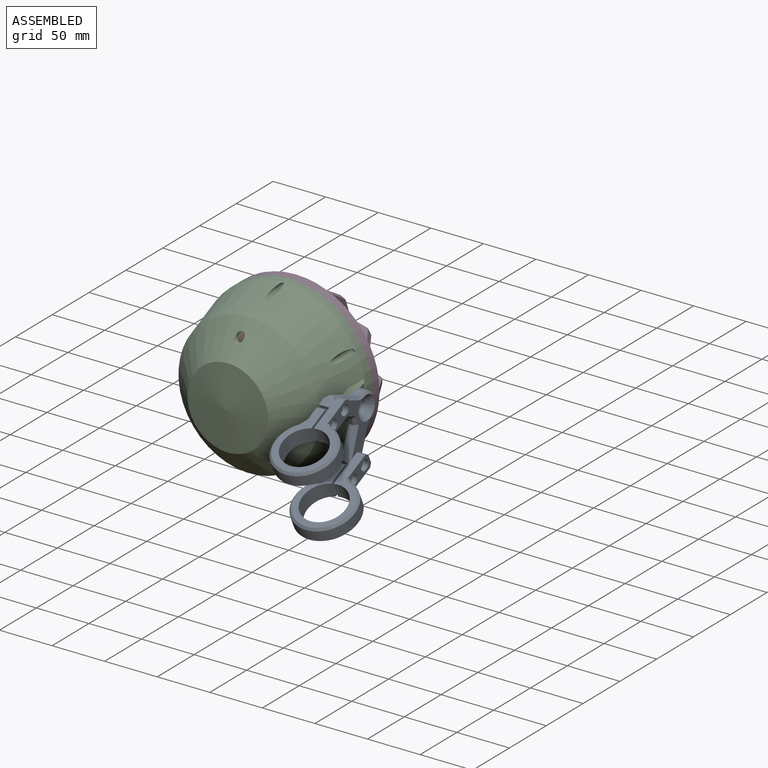
[diagram: assembled view]
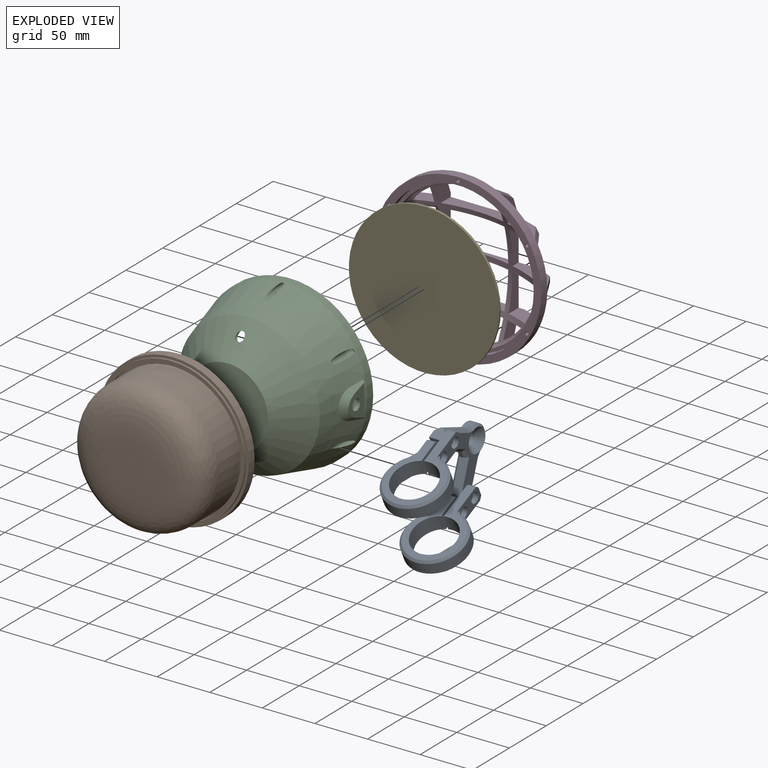
[diagram: exploded view]
GUIDED TOUR — MATED ASSEMBLY WITH SUBASSEMBLIES (Onshape document 69286e60cfd82a157b84bacd, AutoMate assembly 69286e60cfd82a157b84bacd_a28d828d57415dc4b9937659_d57bcda9c0aa24d622f274be_default)

This assembly has 7 component occurrences arranged in 5 top-level units: 4 individual components plus 1 subassembly (S0). The tour has two levels: first the top level, where each subassembly is treated as one rigid unit; then each subassembly is toured internally in its own section (nesting deeper than one subassembly level is flattened into its subassembly's section).

Components are labeled P0..P6 across the whole record; subassembly units are labeled S0..S0. A mate is a constraint between two units; its type names the relative motion it leaves free:
  FASTENED — locks the two components together rigidly (no relative motion),
  PARALLEL — keeps the two listed directions parallel,
  PLANAR — leaves sliding in the plane through the listed point (normal = the listed direction) and rotation about that normal free,
  REVOLUTE — leaves rotation about the listed axis free (a hinge).
Axis/direction vectors are unit vectors and 'through' points are millimeter coordinates, both in the assembly's world frame.

TOP-LEVEL MATES (between units; each subassembly's internal mates are listed in its own section)
  1. FASTENED "Fastened 3": P4 <-> P2, direction (0.000, 1.000, 0.000) through (-33.72, 16.69, 123.53) mm
  2. REVOLUTE "Revolute 1": S0 <-> P4, axis (-1.000, 0.000, 0.000) through (44.98, -0.95, 123.53) mm
  3. FASTENED "Fastened 2": P2 <-> P6, direction (0.000, 1.000, 0.000) through (-33.72, 24.69, 123.53) mm
  4. FASTENED "Fastened 1": P5 <-> P4, direction (0.000, -1.000, 0.000) through (-33.72, 21.15, 123.53) mm

TOP-LEVEL ASSEMBLY ORDER
  1. P4 — the base component [order heuristic]
  2. P2 — core [order heuristic]
  3. P5 — core [order heuristic]
  4. P6 — core [order heuristic]
  5. S0 [order verified]
Order-tag legend:
  [order verified] — this step's position reverses a verified removal order: the component was checked to insert without passing through the ones already placed.
  [order heuristic] — the first 4 components form the assembly's core: parts whose collision-free extraction could not be verified, listed in mate-graph order.

Of the 7 component occurrences, 2 carry the full construction recipe — the FeatureScript program that regenerates the part's solid from scratch; the rest are supplied as boundary geometry only. Each toured unit is shown spotlighted twice — assembled, then exploded with a leader line back to its socket (green = recipe-attached component, orange = geometry-only, blue = subassembly unit; the rest desaturated gray).
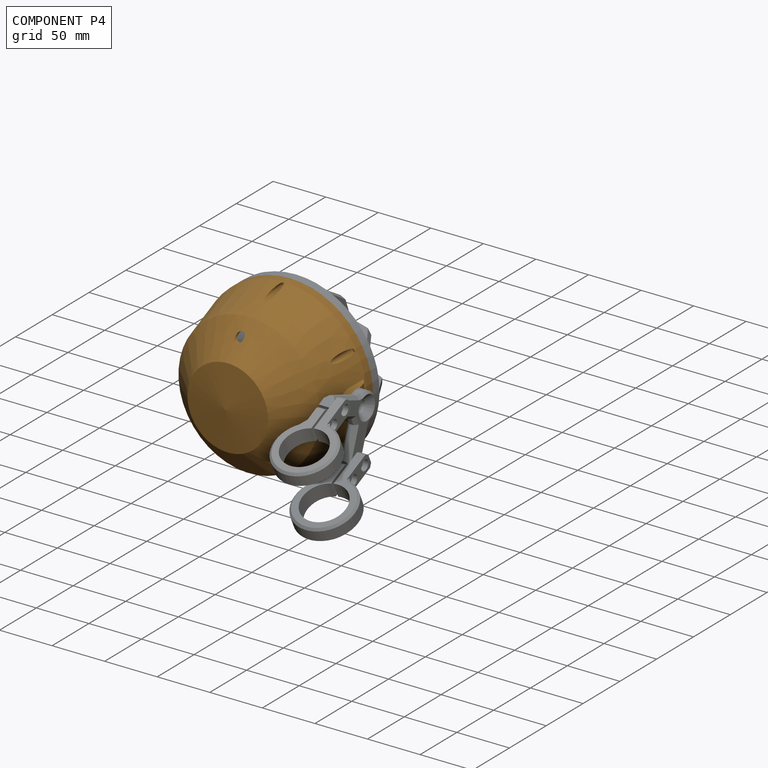
[diagram: component P4 — assembled]
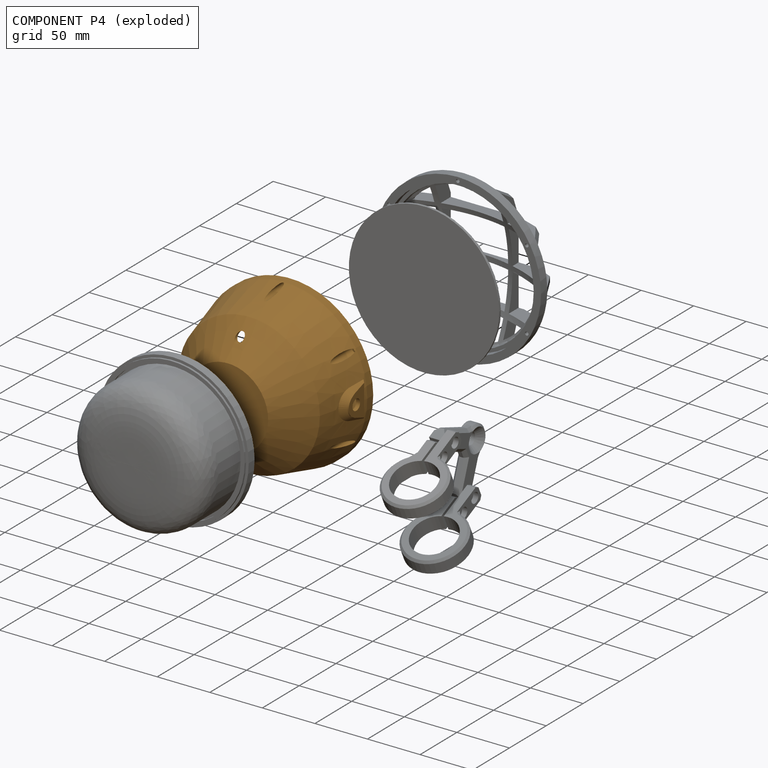
[diagram: component P4 — exploded]
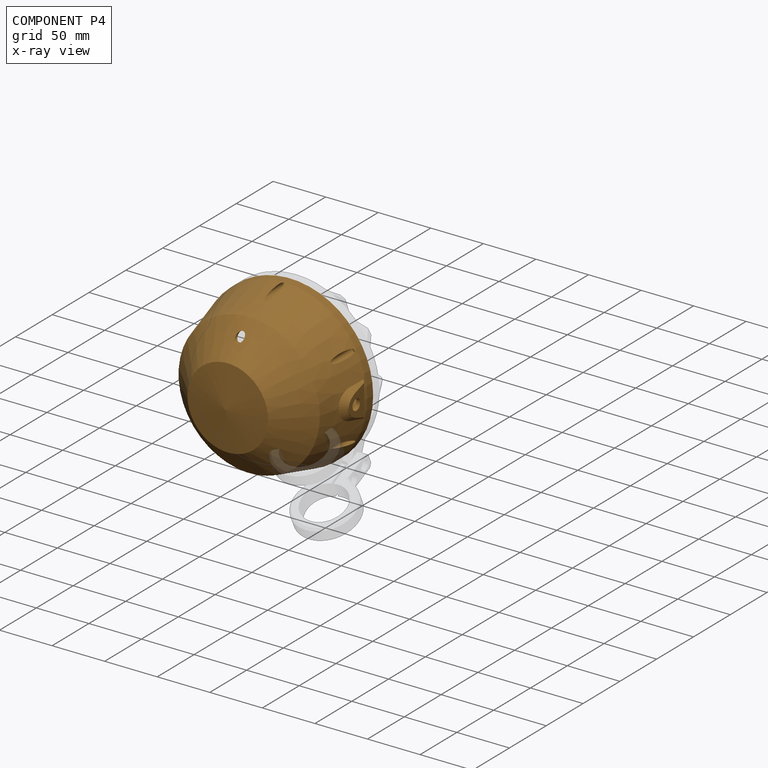
[diagram: component P4 — x-ray view]
COMPONENT P4 — geometry summary (no construction recipe available for this part):
  bounding box: 165.6 x 158.6 x 88.3 mm
  B-rep topology: 1 solid, 70 faces, 370 edges
  volume: 193899 mm^3 (8% of its bounding box)
  symmetry: mirror-symmetric across its x mid-plane
Held by: FASTENED mate "Fastened 3" to P2; REVOLUTE mate "Revolute 1" to P0; FASTENED mate "Fastened 1" to P5.
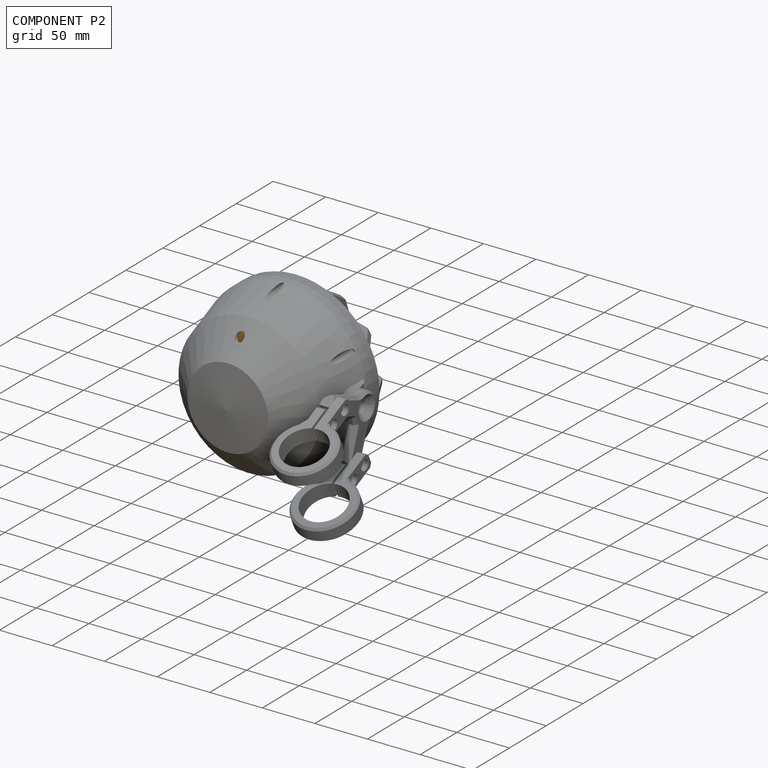
[diagram: component P2 — assembled]
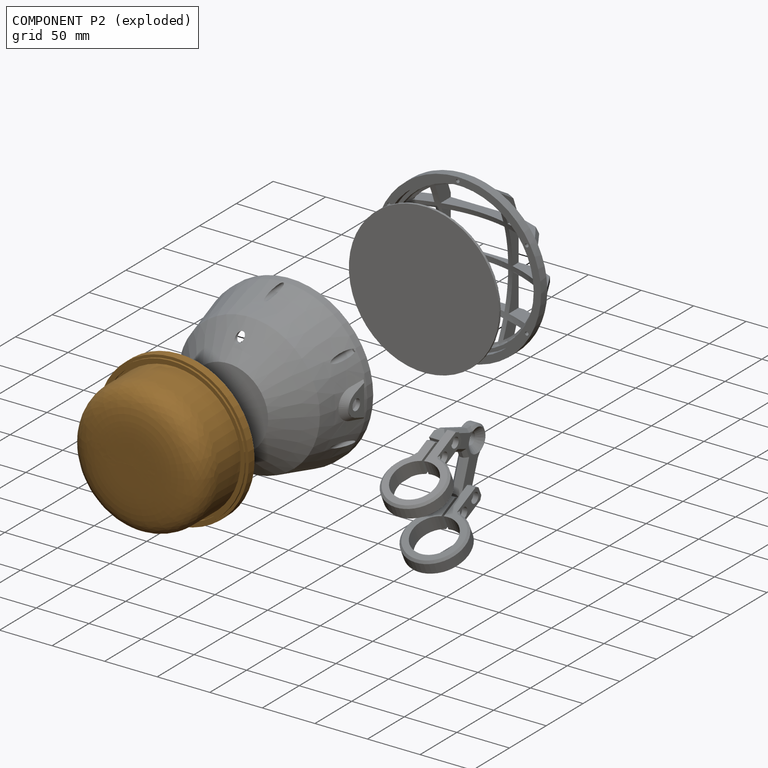
[diagram: component P2 — exploded]
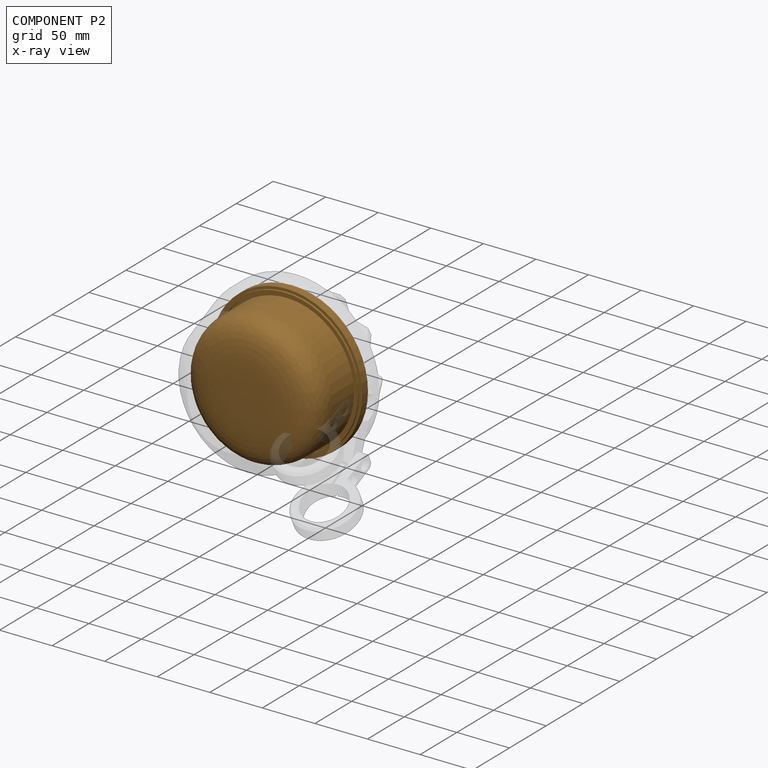
[diagram: component P2 — x-ray view]
COMPONENT P2 — geometry summary (no construction recipe available for this part):
  bounding box: 143.8 x 143.8 x 64.0 mm
  B-rep topology: 1 solid, 9 faces, 29 edges
  volume: 797144 mm^3 (60% of its bounding box)
  symmetry: revolution-symmetric about the z axis through its bounding-box center; mirror-symmetric across its x mid-plane, y mid-plane
Held by: FASTENED mate "Fastened 3" to P4; FASTENED mate "Fastened 2" to P6.
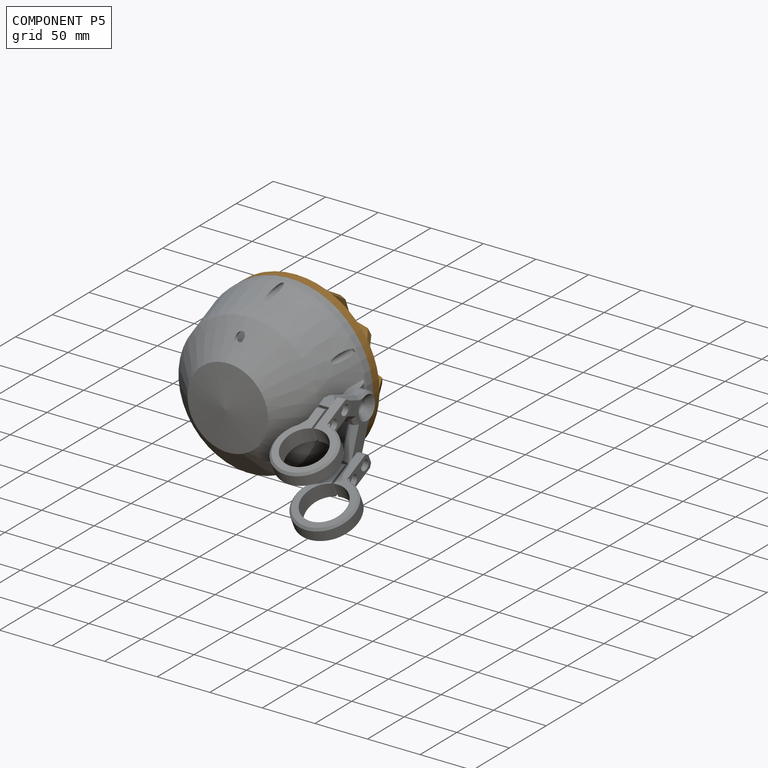
[diagram: component P5 — assembled]
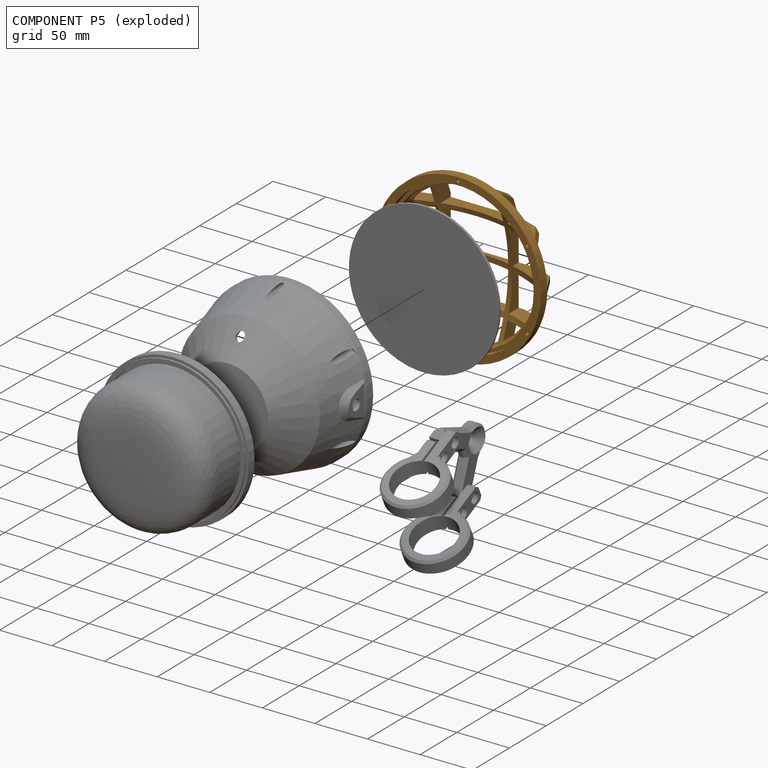
[diagram: component P5 — exploded]
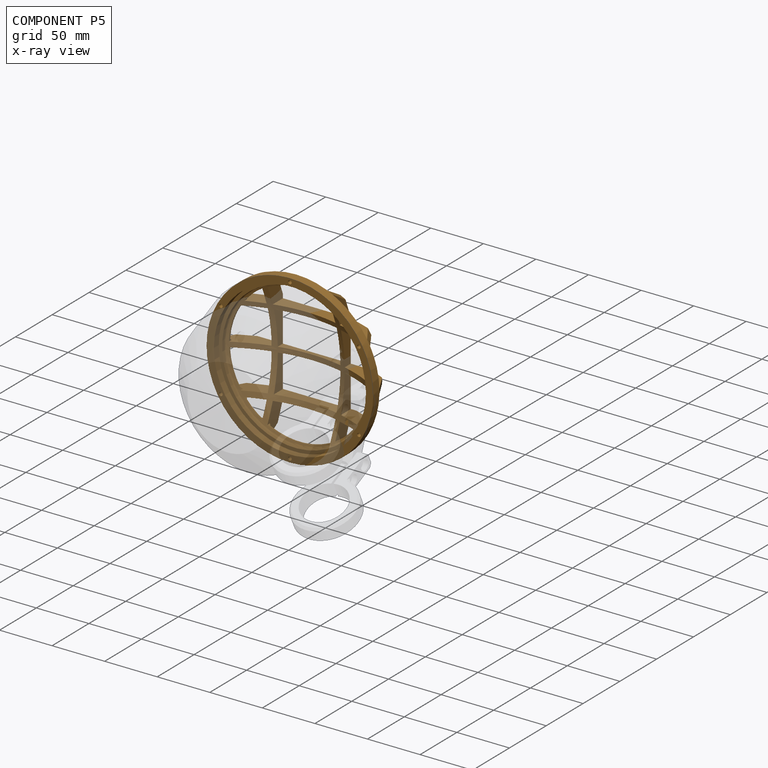
[diagram: component P5 — x-ray view]
COMPONENT P5 — geometry summary (no construction recipe available for this part):
  bounding box: 159.9 x 159.9 x 34.5 mm
  B-rep topology: 1 solid, 123 faces, 719 edges
  volume: 86649 mm^3 (10% of its bounding box)
  symmetry: 2-fold rotationally symmetric about the z axis; mirror-symmetric across its x mid-plane, y mid-plane
Held by: FASTENED mate "Fastened 1" to P4.
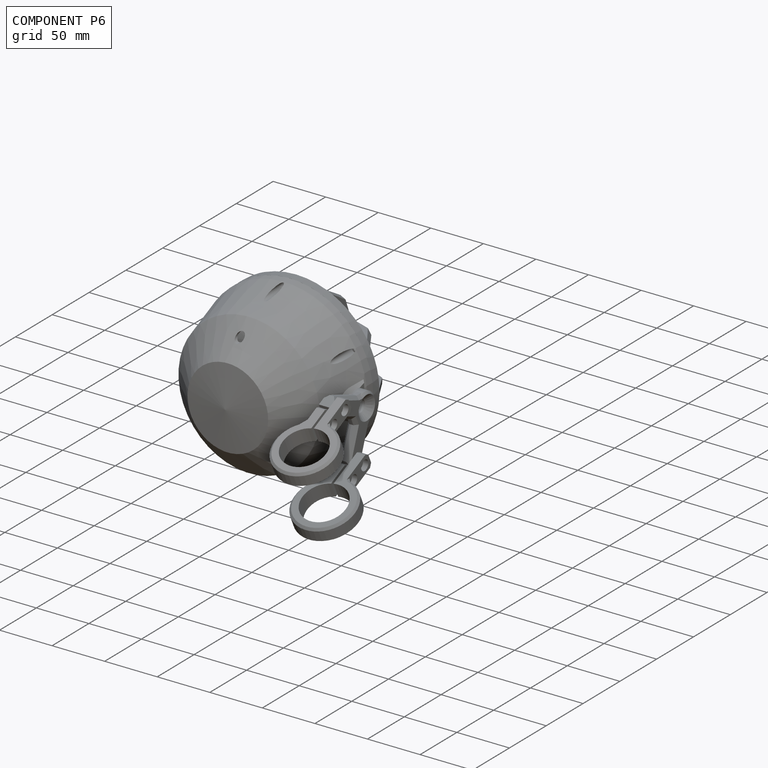
[diagram: component P6 — assembled]
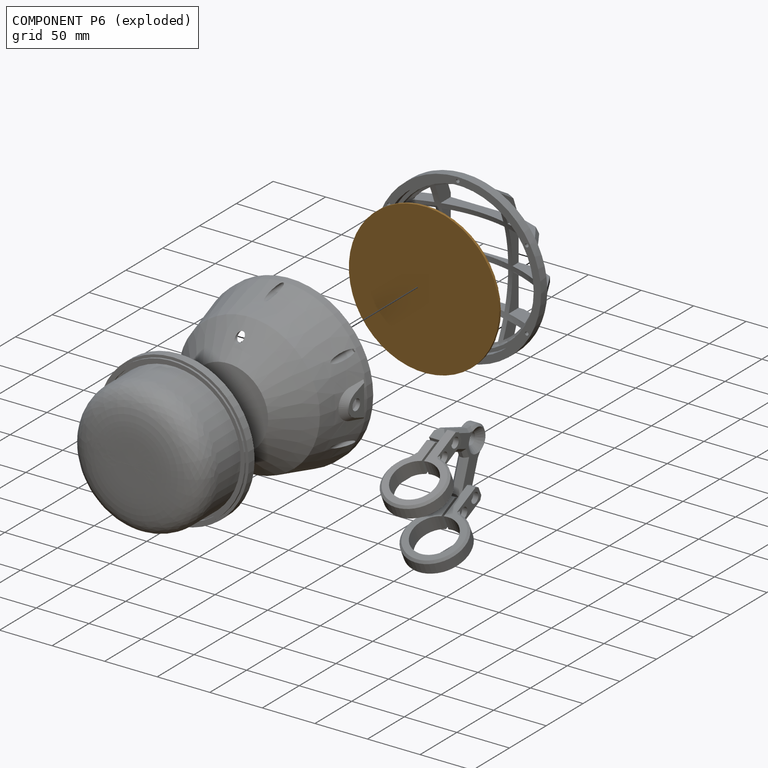
[diagram: component P6 — exploded]
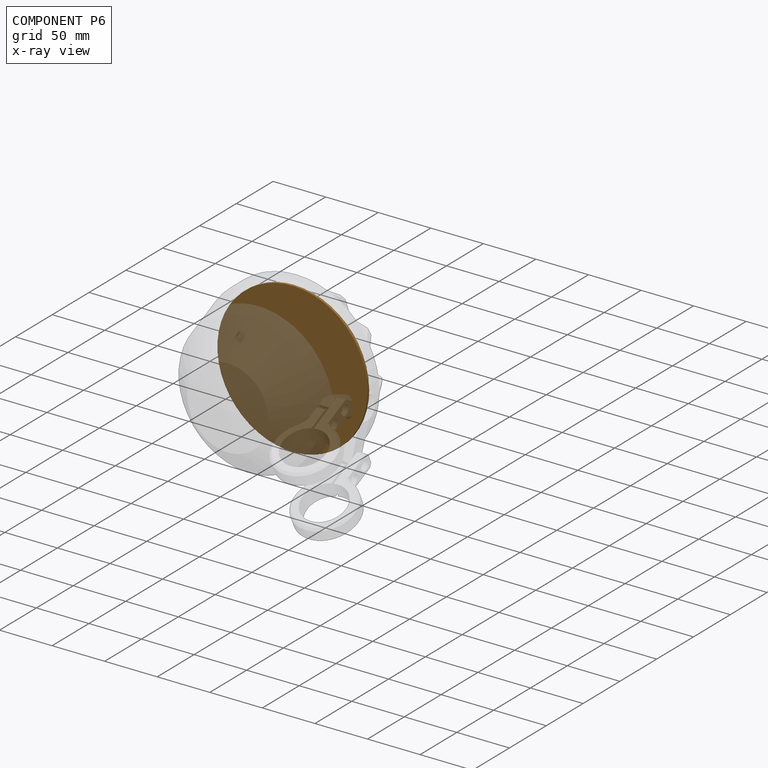
[diagram: component P6 — x-ray view]
COMPONENT P6 — geometry summary (no construction recipe available for this part):
  bounding box: 154.8 x 154.8 x 25.0 mm
  B-rep topology: 1 solid, 8 faces, 29 edges
  volume: 234169 mm^3 (39% of its bounding box)
  symmetry: revolution-symmetric about the z axis through its bounding-box center; mirror-symmetric across its x mid-plane, y mid-plane
Held by: FASTENED mate "Fastened 2" to P2.
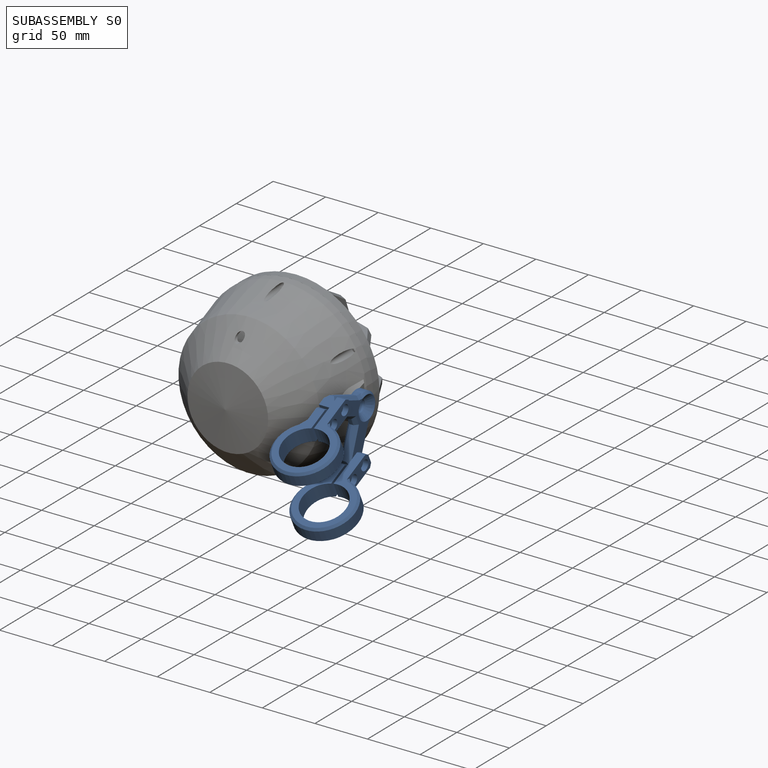
[diagram: subassembly S0 — assembled]
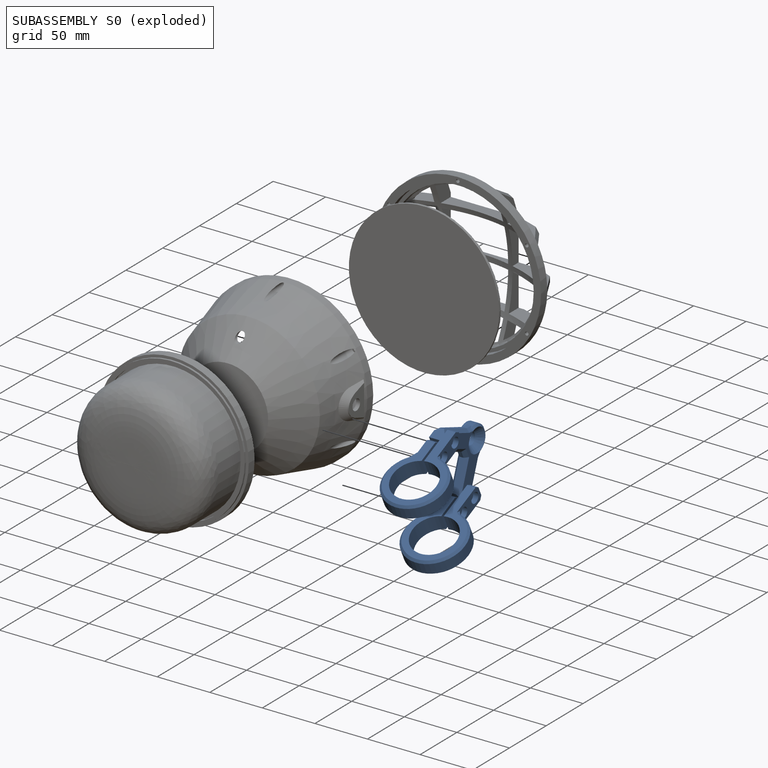
[diagram: subassembly S0 — exploded]
SUBASSEMBLY S0 — 3 components (P0, P1, P3), of which 2 recipe-attached; toured below.
Held by: REVOLUTE mate "Revolute 1" to P4.
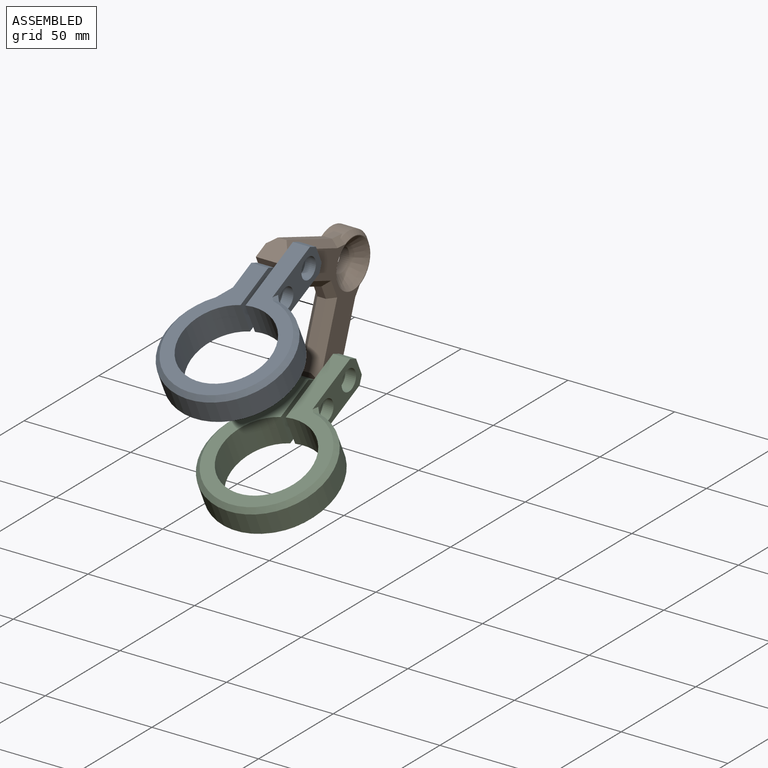
[diagram: subassembly S0 — assembled view]
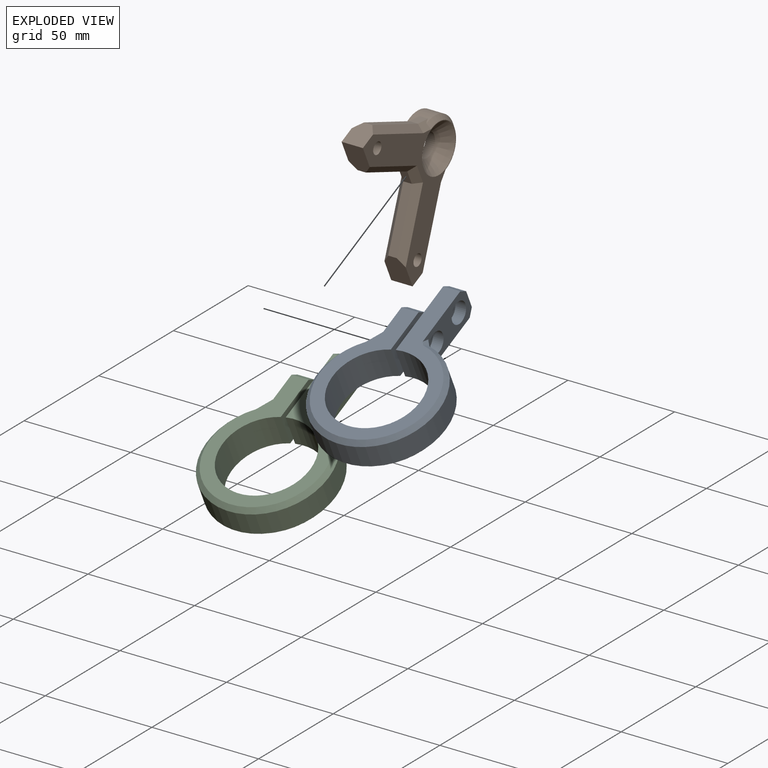
[diagram: subassembly S0 — exploded view]
SUBASSEMBLY S0 TOUR — 3 components, shown here in isolation at its own camera.

INTERNAL MATES
  1. PARALLEL "Parallel 1": P3 <-> P1, direction (0.000, 0.906, 0.423) through (58.98, -8.45, 84.91) mm
  2. PLANAR "Planar 1": P0 <-> P1, direction (-1.000, 0.000, 0.000) through (54.98, -42.16, 139.45) mm
  3. PARALLEL "Parallel 2": P1 <-> P0, direction (0.000, -0.906, -0.423) through (49.98, -16.38, 116.34) mm
  4. REVOLUTE "Revolute 2": P1 <-> P0, axis (1.000, 0.000, 0.000) through (54.98, -42.16, 139.45) mm
  5. PLANAR "Planar 2": P3 <-> P1, direction (-1.000, 0.000, 0.000) through (54.98, -15.25, 81.74) mm
  6. REVOLUTE "Revolute 1": P1 <-> P3, axis (1.000, 0.000, 0.000) through (54.98, -15.25, 81.74) mm
  7. PLANAR "Planar 2": P3 <-> P1, direction (-1.000, 0.000, 0.000) through (54.98, -15.25, 81.74) mm
  8. REVOLUTE "Revolute 2": P1 <-> P0, axis (1.000, 0.000, 0.000) through (54.98, -42.16, 139.45) mm
  9. PARALLEL "Parallel 1": P3 <-> P1, direction (0.000, 0.906, 0.423) through (58.98, -8.45, 84.91) mm
  10. REVOLUTE "Revolute 1": P1 <-> P3, axis (1.000, 0.000, 0.000) through (54.98, -15.25, 81.74) mm
  11. PARALLEL "Parallel 2": P1 <-> P0, direction (0.000, -0.906, -0.423) through (49.98, -16.38, 116.34) mm
  12. PLANAR "Planar 1": P0 <-> P1, direction (-1.000, 0.000, 0.000) through (54.98, -42.16, 139.45) mm

ASSEMBLY ORDER (within the subassembly)
  1. P3 — the base component [order verified]
  2. P0 [order verified]
  3. P1 [order verified]
Order-tag legend:
  [order verified] — this step's position reverses a verified removal order: the component was checked to insert without passing through the ones already placed.
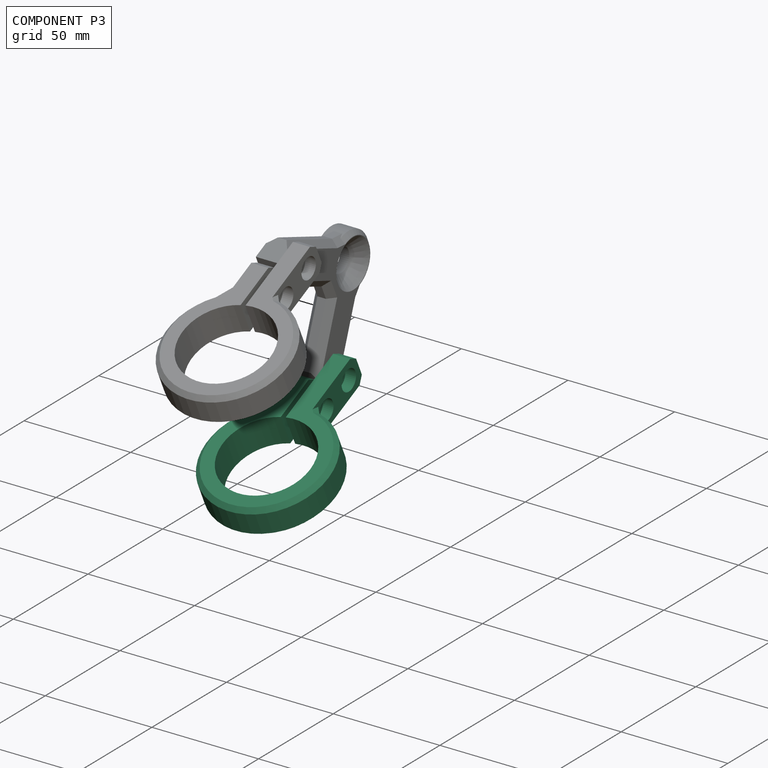
[diagram: component P3 — assembled]
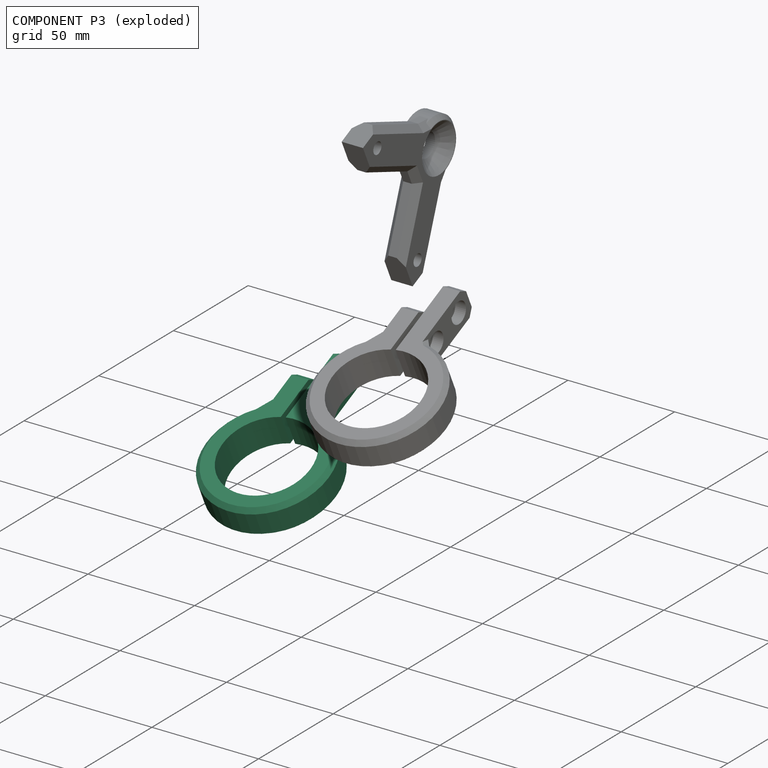
[diagram: component P3 — exploded]
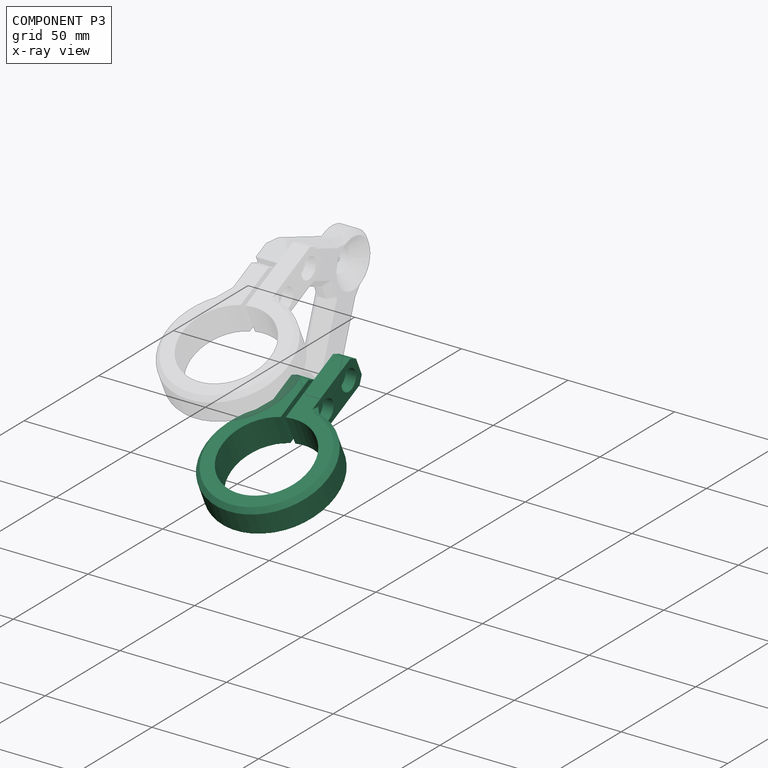
[diagram: component P3 — x-ray view]
COMPONENT P3 — same part as P0 (CADFS 00960347); its construction recipe is shown at P0.
Held by: PARALLEL mate "Parallel 1" to P1; PLANAR mate "Planar 2" to P1; REVOLUTE mate "Revolute 1" to P1; PLANAR mate "Planar 2" to P1; PARALLEL mate "Parallel 1" to P1; REVOLUTE mate "Revolute 1" to P1.
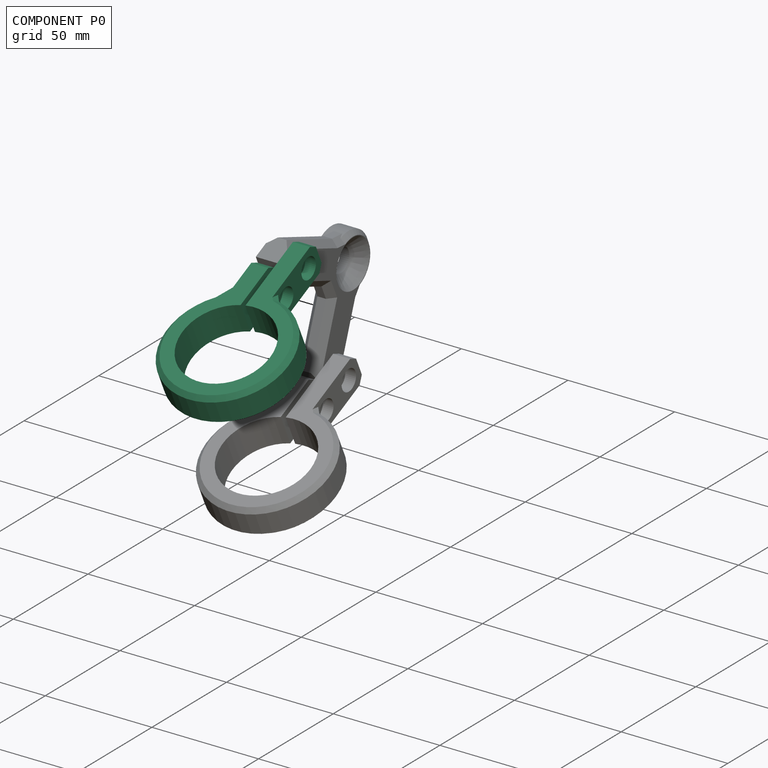
[diagram: component P0 — assembled]
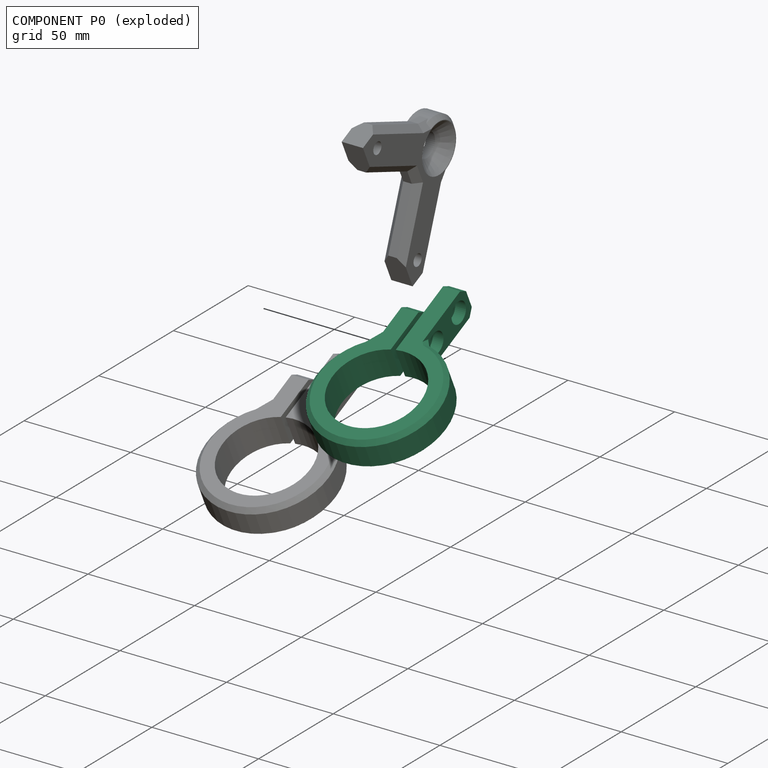
[diagram: component P0 — exploded]
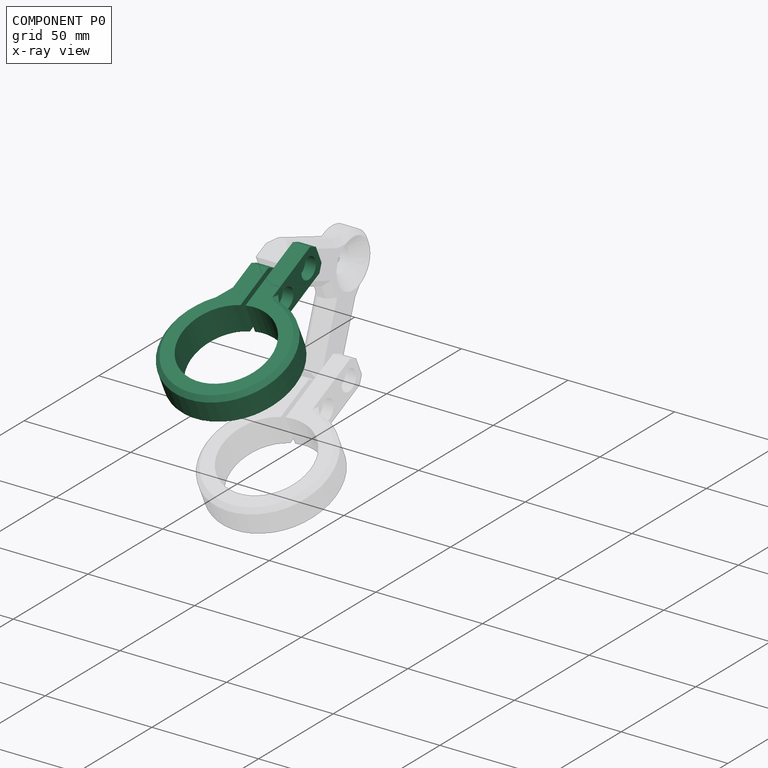
[diagram: component P0 — x-ray view]
COMPONENT P0 — recipe-attached (CADFS 00960347, mesh-verified: the recipe's output STEP matches this component's geometry to below the mesh-comparison resolution (tessellation chordal tolerance ~0.157 mm)).
Held by: PLANAR mate "Planar 1" to P1; PARALLEL mate "Parallel 2" to P1; REVOLUTE mate "Revolute 2" to P1; REVOLUTE mate "Revolute 2" to P1; PARALLEL mate "Parallel 2" to P1; PLANAR mate "Planar 1" to P1.
Construction recipe (FeatureScript — the CAD program that rebuilds this solid; sketch coordinates are in the units given by the * unit suffixes, e.g. mm):

FeatureScript 1511;
import(path : "onshape/std/geometry.fs", version : "1511.0");
import(path : "onshape/std/common.fs", version : "1511.0");
const mm = millimeter;
const VERTEX = EntityType.VERTEX;
const EDGE = EntityType.EDGE;
const FACE = EntityType.FACE;
const BODY = EntityType.BODY;
function v(x, y){return vector(x, y);}
function OD(order){return orderDisambiguation(order);}
function OSD(set){return originalSetDisambiguation(set);}
function TD(topology){return topologyDisambiguation(topology);}
function TDD(query){return trueDependencyDisambiguation(query);}
function sQuery(a, b, c) {return sketchEntityQuery(a, b, c);}

annotation { "Feature Type Name" : "Feature", "Feature Type Description" : "" }
export const myFeature = defineFeature(function(context is Context, id is Id, definition is map)
    precondition{}
    {
        {
            var Q0;
            Q0=qCreatedBy(makeId("Top.planeOp"),FACE);
            var sketch = newSketch(context, id + "F0", { "sketchPlane" : qUnion([Q0])});
            skArc(sketch, "E0", {"start": v(20.14, -3.8) * mm, "mid": v(-19.93, 4.8) * mm, "end": v(19.66, -5.8) * mm});
            skLineSegment(sketch, "E1.bottom", {"start": v(43.19, -13.8) * mm, "end": v(24.94, -13.8) * mm});
            skLineSegment(sketch, "E1.top", {"start": v(43.19, 4.2) * mm, "end": v(28.19, 4.2) * mm});
            skLineSegment(sketch, "E1.left", {"start": v(43.19, -13.8) * mm, "end": v(43.19, -5.8) * mm});
            skLineSegment(sketch, "E2.bottom", {"start": v(43.19, -5.8) * mm, "end": v(19.66, -5.8) * mm});
            skLineSegment(sketch, "E2.top", {"start": v(43.19, -3.8) * mm, "end": v(20.14, -3.8) * mm});
            skLineSegment(sketch, "E3.trimOffspring", {"start": v(43.19, -3.8) * mm, "end": v(43.19, 4.2) * mm});
            skArc(sketch, "E4.trimOffspring", {"start": v(28.19, 4.2) * mm, "mid": v(-28.05, 5.07) * mm, "end": v(24.94, -13.8) * mm});
            skLineSegment(sketch, "E5", {"start": v(25.49, 0) * mm, "end": v(25.49, -3.8) * mm, "construction": true});
            skLineSegment(sketch, "E6", {"start": v(-37.17, 0) * mm, "end": v(70.98, 0) * mm, "construction": true});
            skSolve(sketch);
        }
        {
            var Q0;
            Q0 = qSketchRegion(id + "F0", true);
            extrude(context, id + "F1", {"entities" : qUnion([Q0]), "depth" : 15 * mm, "offsetDistance" : 25 * mm});
        }
        {
            var Q0;
            Q0=makeQuery(id+"F1.opExtrude","SWEPT_FACE",FACE,{"disambiguationData":[OSD([sQuery(id+"F0.wireOp",EDGE,"E3.trimOffspring")])]});
            extrude(context, id + "F2", {"entities" : qUnion([Q0]), "operationType" : NewBodyOperationType.ADD, "depth" : 15 * mm, "offsetDistance" : 25 * mm});
        }
        {
            var Q0;
            {var subQ0=sQuery(id+"F0.wireOp",EDGE,"E1.top");Q0=makeQuery(id+"F2.boolean.opBoolean","MERGE",FACE,{"derivedFrom":[makeQuery(id+"F1.opExtrude","SWEPT_FACE",FACE,{"disambiguationData":[OSD([subQ0])]}),makeQuery(id+"F2.opExtrude","SWEPT_FACE",FACE,{"disambiguationData":[OSD([subQ0,sQuery(id+"F0.wireOp",EDGE,"E3.trimOffspring")])]})]});}
            var sketch = newSketch(context, id + "F3", { "sketchPlane" : qUnion([Q0])});
            skLineSegment(sketch, "E7", {"start": v(-24.94, 15) * mm, "end": v(-43.19, 0) * mm, "construction": true});
            skLineSegment(sketch, "E8", {"start": v(-43.19, 15) * mm, "end": v(-24.94, 0) * mm, "construction": true});
            skPoint(sketch, "E9", {"position": v(-34.06, 7.5) * mm});
            skSolve(sketch);
        }
        {
            var Q0;
            Q0=sQuery(id+"F3.wireOp",VERTEX,"E9");
            var Q1;
            Q1=makeQuery(id+"F1.opExtrude","SWEPT_BODY",BODY,{"disambiguationData":[OSD([sQuery(id+"F0.wireOp",EDGE,"E0"),sQuery(id+"F0.wireOp",EDGE,"E1.bottom"),sQuery(id+"F0.wireOp",EDGE,"E1.top"),sQuery(id+"F0.wireOp",EDGE,"E1.left"),sQuery(id+"F0.wireOp",EDGE,"E2.bottom"),sQuery(id+"F0.wireOp",EDGE,"E2.top"),sQuery(id+"F0.wireOp",EDGE,"E3.trimOffspring"),sQuery(id+"F0.wireOp",EDGE,"E4.trimOffspring")])]});
            hole(context, id + "F4", {"style" : HoleStyle.C_BORE, "endStyle" : HoleEndStyle.BLIND, "standardTappedOrClearance" : lookupTablePath({ "fit" : "Normal", "standard" : "ISO", "size" : "M5", "type" : "Clearance" }), "standardBlindInLast" : lookupTablePath({ "fit" : "Normal", "standard" : "ISO", "engagement" : "75%", "pitch" : "0.8 mm", "size" : "M5", "type" : "Clearance & tapped" }), "holeDiameter" : 5.5 * mm, "cBoreDiameter" : 9.75 * mm, "cBoreDepth" : 5 * mm, "majorDiameter" : 5 * mm, "holeDepth" : 40 * mm, "tappedDepth" : 19.5 * mm, "tapClearance" : 3, "startFromSketch" : true, "locations" : qUnion([Q0]), "scope" : qUnion([Q1])});
        }
        {
            var Q0;
            Q0=makeQuery(id+"F1.opExtrude","CAP_EDGE",EDGE,{"disambiguationData":[OSD([sQuery(id+"F0.wireOp",EDGE,"E1.left")])],"isStart":false});
            var Q1;
            Q1=makeQuery(id+"F1.opExtrude","CAP_EDGE",EDGE,{"disambiguationData":[OSD([sQuery(id+"F0.wireOp",EDGE,"E1.left")])],"isStart":true});
            var Q2;
            Q2=makeQuery(id+"F1.opExtrude","SWEPT_EDGE",EDGE,{"disambiguationData":[OSD([sQuery(id+"F0.wireOp",EDGE,"E1.bottom"),sQuery(id+"F0.wireOp",EDGE,"E4.trimOffspring")])]});
            var Q3;
            {var subQ0=sQuery(id+"F0.wireOp",EDGE,"E3.trimOffspring");Q3=makeQuery(id+"F2.opExtrude","CAP_EDGE",EDGE,{"disambiguationData":[OSD([subQ0]),TDD([makeQuery(id+"F1.opExtrude","CAP_EDGE",EDGE,{"disambiguationData":[OSD([subQ0])],"isStart":false})])],"isStart":false});}
            var Q4;
            {var subQ0=sQuery(id+"F0.wireOp",EDGE,"E3.trimOffspring");Q4=makeQuery(id+"F2.opExtrude","CAP_EDGE",EDGE,{"disambiguationData":[OSD([subQ0]),TDD([makeQuery(id+"F1.opExtrude","CAP_EDGE",EDGE,{"disambiguationData":[OSD([subQ0])],"isStart":true})])],"isStart":false});}
            var Q5;
            Q5=makeQuery(id+"F1.opExtrude","SWEPT_EDGE",EDGE,{"disambiguationData":[OSD([sQuery(id+"F0.wireOp",EDGE,"E1.top"),sQuery(id+"F0.wireOp",EDGE,"E4.trimOffspring")])]});
            chamfer(context, id + "F5", {"entities" : qUnion([Q0, Q1, Q2, Q3, Q4, Q5]), "width" : 3 * mm, "tangentPropagation" : true});
        }
        {
            var Q0;
            {var subQ0=sQuery(id+"F0.wireOp",EDGE,"E1.top");Q0=makeQuery(id+"F2.boolean.opBoolean","MERGE",FACE,{"derivedFrom":[makeQuery(id+"F1.opExtrude","SWEPT_FACE",FACE,{"disambiguationData":[OSD([subQ0])]}),makeQuery(id+"F2.opExtrude","SWEPT_FACE",FACE,{"disambiguationData":[OSD([subQ0,sQuery(id+"F0.wireOp",EDGE,"E3.trimOffspring")])]})]});}
            var sketch = newSketch(context, id + "F6", { "sketchPlane" : qUnion([Q0])});
            skLineSegment(sketch, "E10", {"start": v(-43.19, 15) * mm, "end": v(-43.19, 0) * mm, "construction": true});
            skLineSegment(sketch, "E11", {"start": v(-43.19, 15) * mm, "end": v(-58.19, 0) * mm, "construction": true});
            skLineSegment(sketch, "E12", {"start": v(-58.19, 15) * mm, "end": v(-43.19, 0) * mm, "construction": true});
            skPoint(sketch, "E13", {"position": v(-50.69, 7.5) * mm});
            skLineSegment(sketch, "E14", {"start": v(-58.19, 0) * mm, "end": v(-58.19, 15) * mm, "construction": true});
            skSolve(sketch);
        }
        {
            var Q0;
            Q0=sQuery(id+"F6.wireOp",VERTEX,"E13");
            var Q1;
            Q1=makeQuery(id+"F1.opExtrude","SWEPT_BODY",BODY,{"disambiguationData":[OSD([sQuery(id+"F0.wireOp",EDGE,"E0"),sQuery(id+"F0.wireOp",EDGE,"E1.bottom"),sQuery(id+"F0.wireOp",EDGE,"E1.top"),sQuery(id+"F0.wireOp",EDGE,"E1.left"),sQuery(id+"F0.wireOp",EDGE,"E2.bottom"),sQuery(id+"F0.wireOp",EDGE,"E2.top"),sQuery(id+"F0.wireOp",EDGE,"E3.trimOffspring"),sQuery(id+"F0.wireOp",EDGE,"E4.trimOffspring")])]});
            hole(context, id + "F7", {"style" : HoleStyle.C_BORE, "endStyle" : HoleEndStyle.BLIND, "standardTappedOrClearance" : lookupTablePath({ "fit" : "Normal", "standard" : "ISO", "size" : "M5", "type" : "Clearance" }), "standardBlindInLast" : lookupTablePath({ "fit" : "Normal", "standard" : "ISO", "engagement" : "75%", "pitch" : "0.8 mm", "size" : "M5", "type" : "Clearance & tapped" }), "holeDiameter" : 5.5 * mm, "cBoreDiameter" : 9.75 * mm, "cBoreDepth" : 5 * mm, "majorDiameter" : 5 * mm, "holeDepth" : 40 * mm, "tappedDepth" : 19.5 * mm, "tapClearance" : 3, "startFromSketch" : true, "locations" : qUnion([Q0]), "scope" : qUnion([Q1])});
        }
        {
            var Q0;
            Q0=makeQuery(id+"F1.opExtrude","SWEPT_FACE",FACE,{"disambiguationData":[OSD([sQuery(id+"F0.wireOp",EDGE,"E1.bottom")])]});
            var sketch = newSketch(context, id + "F8", { "sketchPlane" : qUnion([Q0])});
            skCircle(sketch, "E15.cCircle", {"center": v(34.06, 7.5) * mm, "radius": 4 * mm, "construction": true});
            skLineSegment(sketch, "E15.0", {"start": v(38.06, 9.8) * mm, "end": v(38.06, 5.2) * mm});
            skLineSegment(sketch, "E15.1", {"start": v(38.06, 5.2) * mm, "end": v(34.06, 2.88) * mm});
            skLineSegment(sketch, "E15.2", {"start": v(34.06, 2.88) * mm, "end": v(30.06, 5.2) * mm});
            skLineSegment(sketch, "E15.3", {"start": v(30.06, 5.2) * mm, "end": v(30.06, 9.8) * mm});
            skLineSegment(sketch, "E15.4", {"start": v(30.06, 9.8) * mm, "end": v(34.06, 12.12) * mm});
            skLineSegment(sketch, "E15.5", {"start": v(34.06, 12.12) * mm, "end": v(38.06, 9.8) * mm});
            skPoint(sketch, "E15.0.midPoint", {"position": v(38.06, 7.5) * mm});
            skSolve(sketch);
        }
        {
            var Q0;
            Q0 = qSketchRegion(id + "F8", true);
            extrude(context, id + "F9", {"entities" : qUnion([Q0]), "operationType" : NewBodyOperationType.REMOVE, "oppositeDirection" : true, "depth" : 3 * mm, "offsetDistance" : 25 * mm, "hasSecondDirection" : true, "secondDirectionOppositeDirection" : false, "secondDirectionDepth" : 25 * mm});
        }
        {
            var Q0;
            Q0=makeQuery(id+"F1.opExtrude","CAP_EDGE",EDGE,{"disambiguationData":[OSD([sQuery(id+"F0.wireOp",EDGE,"E4.trimOffspring")])],"isStart":false});
            var Q1;
            Q1=makeQuery(id+"F1.opExtrude","CAP_EDGE",EDGE,{"disambiguationData":[OSD([sQuery(id+"F0.wireOp",EDGE,"E4.trimOffspring")])],"isStart":true});
            var Q2;
            {var subQ0=sQuery(id+"F0.wireOp",EDGE,"E3.trimOffspring");var subQ1=sQuery(id+"F0.wireOp",EDGE,"E4.trimOffspring");var subQ2=sQuery(id+"F0.wireOp",EDGE,"E1.top");Q2=makeQuery(id+"F5.opChamfer","BLEND_EDGE",EDGE,{"blendedFrom":[makeQuery(id+"F1.opExtrude","SWEPT_EDGE",EDGE,{"disambiguationData":[OSD([subQ2,subQ1])]}),makeQuery(id+"F2.boolean.opBoolean","MERGE",FACE,{"derivedFrom":[makeQuery(id+"F1.opExtrude","CAP_FACE",FACE,{"disambiguationData":[OSD([sQuery(id+"F0.wireOp",EDGE,"E0"),sQuery(id+"F0.wireOp",EDGE,"E1.bottom"),subQ2,sQuery(id+"F0.wireOp",EDGE,"E1.left"),sQuery(id+"F0.wireOp",EDGE,"E2.bottom"),sQuery(id+"F0.wireOp",EDGE,"E2.top"),subQ0,subQ1])],"isStart":false}),makeQuery(id+"F2.opExtrude","SWEPT_FACE",FACE,{"disambiguationData":[OSD([subQ0]),TDD([makeQuery(id+"F1.opExtrude","CAP_EDGE",EDGE,{"disambiguationData":[OSD([subQ0])],"isStart":false})])]})]})],"blendedInto":[makeQuery(id+"F2.boolean.opBoolean","MERGE",FACE,{"derivedFrom":[makeQuery(id+"F1.opExtrude","CAP_FACE",FACE,{"disambiguationData":[OSD([sQuery(id+"F0.wireOp",EDGE,"E0"),sQuery(id+"F0.wireOp",EDGE,"E1.bottom"),subQ2,sQuery(id+"F0.wireOp",EDGE,"E1.left"),sQuery(id+"F0.wireOp",EDGE,"E2.bottom"),sQuery(id+"F0.wireOp",EDGE,"E2.top"),subQ0,subQ1])],"isStart":false}),makeQuery(id+"F2.opExtrude","SWEPT_FACE",FACE,{"disambiguationData":[OSD([subQ0]),TDD([makeQuery(id+"F1.opExtrude","CAP_EDGE",EDGE,{"disambiguationData":[OSD([subQ0])],"isStart":false})])]})]})]});}
            var Q3;
            {var subQ0=sQuery(id+"F0.wireOp",EDGE,"E3.trimOffspring");var subQ1=sQuery(id+"F0.wireOp",EDGE,"E4.trimOffspring");var subQ2=sQuery(id+"F0.wireOp",EDGE,"E1.top");Q3=makeQuery(id+"F5.opChamfer","BLEND_EDGE",EDGE,{"blendedFrom":[makeQuery(id+"F1.opExtrude","SWEPT_EDGE",EDGE,{"disambiguationData":[OSD([subQ2,subQ1])]}),makeQuery(id+"F2.boolean.opBoolean","MERGE",FACE,{"derivedFrom":[makeQuery(id+"F1.opExtrude","CAP_FACE",FACE,{"disambiguationData":[OSD([sQuery(id+"F0.wireOp",EDGE,"E0"),sQuery(id+"F0.wireOp",EDGE,"E1.bottom"),subQ2,sQuery(id+"F0.wireOp",EDGE,"E1.left"),sQuery(id+"F0.wireOp",EDGE,"E2.bottom"),sQuery(id+"F0.wireOp",EDGE,"E2.top"),subQ0,subQ1])],"isStart":true}),makeQuery(id+"F2.opExtrude","SWEPT_FACE",FACE,{"disambiguationData":[OSD([subQ0]),TDD([makeQuery(id+"F1.opExtrude","CAP_EDGE",EDGE,{"disambiguationData":[OSD([subQ0])],"isStart":true})])]})]})],"blendedInto":[makeQuery(id+"F2.boolean.opBoolean","MERGE",FACE,{"derivedFrom":[makeQuery(id+"F1.opExtrude","CAP_FACE",FACE,{"disambiguationData":[OSD([sQuery(id+"F0.wireOp",EDGE,"E0"),sQuery(id+"F0.wireOp",EDGE,"E1.bottom"),subQ2,sQuery(id+"F0.wireOp",EDGE,"E1.left"),sQuery(id+"F0.wireOp",EDGE,"E2.bottom"),sQuery(id+"F0.wireOp",EDGE,"E2.top"),subQ0,subQ1])],"isStart":true}),makeQuery(id+"F2.opExtrude","SWEPT_FACE",FACE,{"disambiguationData":[OSD([subQ0]),TDD([makeQuery(id+"F1.opExtrude","CAP_EDGE",EDGE,{"disambiguationData":[OSD([subQ0])],"isStart":true})])]})]})]});}
            chamfer(context, id + "F10", {"entities" : qUnion([Q0, Q1, Q2, Q3]), "width" : 2 * mm, "tangentPropagation" : true});
        }
    });
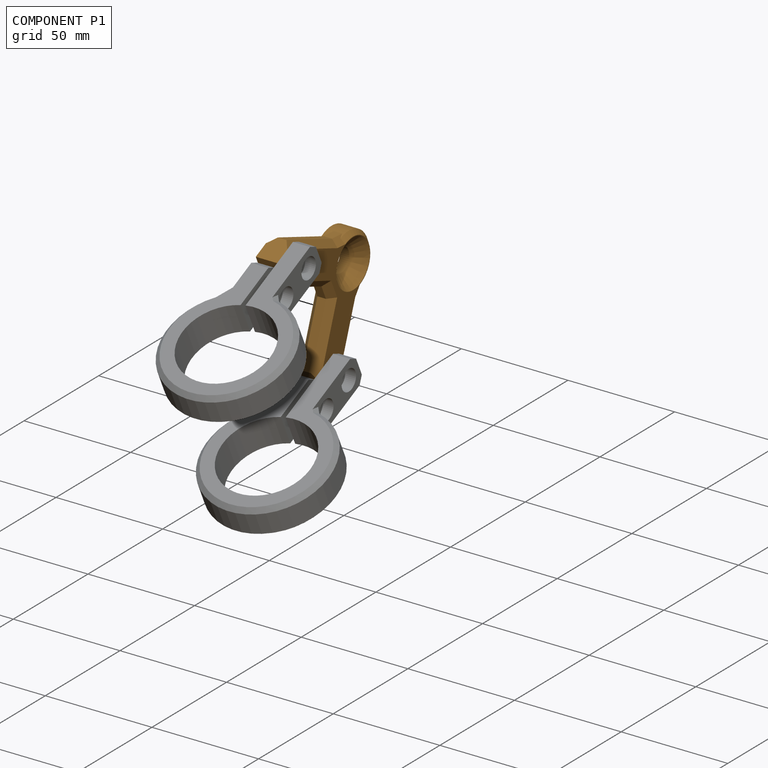
[diagram: component P1 — assembled]
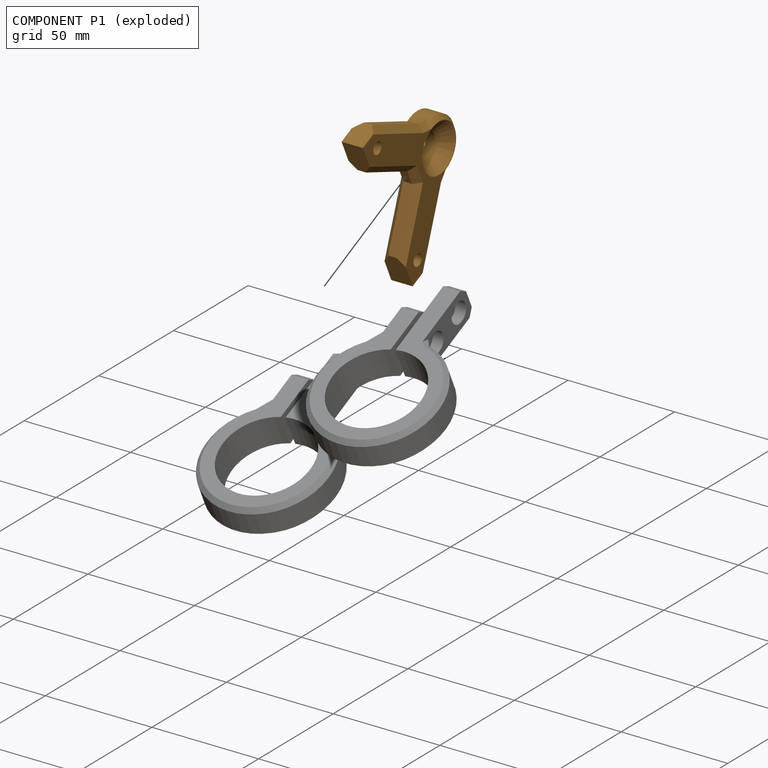
[diagram: component P1 — exploded]
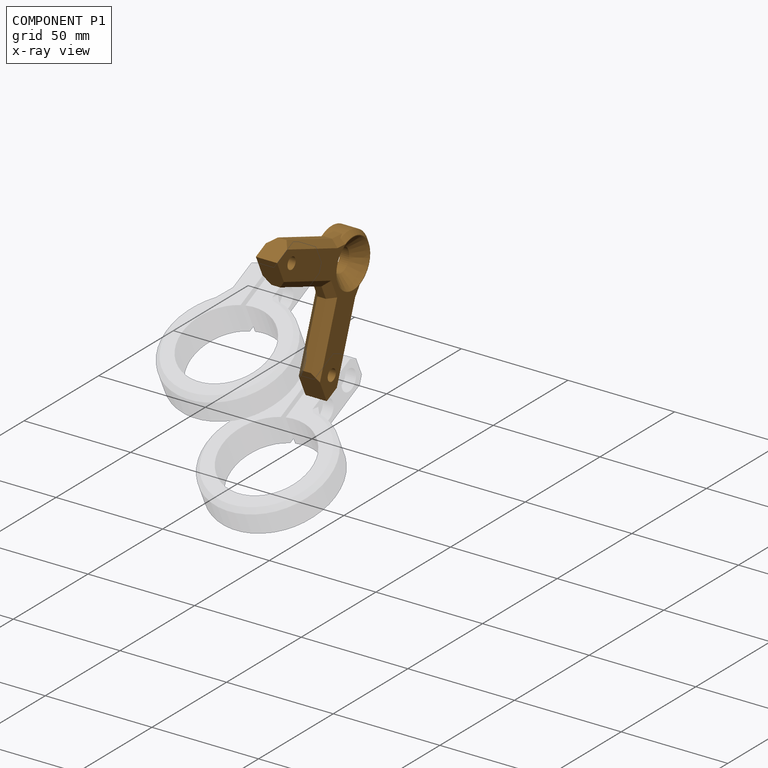
[diagram: component P1 — x-ray view]
COMPONENT P1 — geometry summary (no construction recipe available for this part):
  bounding box: 78.7 x 51.3 x 10.0 mm
  B-rep topology: 1 solid, 47 faces, 244 edges
  volume: 16297 mm^3 (40% of its bounding box)
  symmetry: mirror-symmetric across its y mid-plane
Held by: PARALLEL mate "Parallel 1" to P3; PLANAR mate "Planar 1" to P0; PARALLEL mate "Parallel 2" to P0; REVOLUTE mate "Revolute 2" to P0; PLANAR mate "Planar 2" to P3; REVOLUTE mate "Revolute 1" to P3; PLANAR mate "Planar 2" to P3; REVOLUTE mate "Revolute 2" to P0; PARALLEL mate "Parallel 1" to P3; REVOLUTE mate "Revolute 1" to P3; PARALLEL mate "Parallel 2" to P0; PLANAR mate "Planar 1" to P0.
PROVENANCE & LICENSES
Assembly (occurrences, transforms, mates, per-part STEP geometry): AutoMate dataset, Zenodo record 7776208, CC0.
Construction recipes: CADFS (HuggingFace VladPyatov/CADFS, CC-BY-4.0, layered over the ABC dataset), FeatureScript reconstruction programs keyed by ABC model id.
Join: ABC meta listings map ABC model id -> Onshape documentId; within a shared document, parts are matched by geometric signature (bounding-box dims + volume at 0.1% relative tolerance, exact B-rep face/solid counts).
Verification: 2 of this assembly's 7 components carry a recipe attachment, and every attachment is mesh-verified: the CADFS STEP and the AutoMate member STEP were compared as meshes in their shared local frame (symmetric sampled-point-to-mesh distance); worst across the 2 attachments: below the mesh-comparison resolution (tessellation chordal tolerance ~0.157 mm) on a 105 mm part.
Renders: orthographic iso camera (az 35 / el 25); the floor grid conveys scale (grid pitch printed in each image; no ruler). In the exploded view each component is displaced by its stored offset vector: the offsets alone carry the explosion direction (mate normal/axis signs are not orientation cues and do not encode it), and separation distances are assigned per mate-chain, not proportionally to assembly-order depth.
